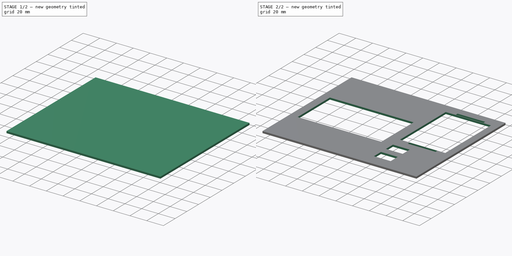
[diagram: build sequence overview — one tinted view per stage of 2, left to right]
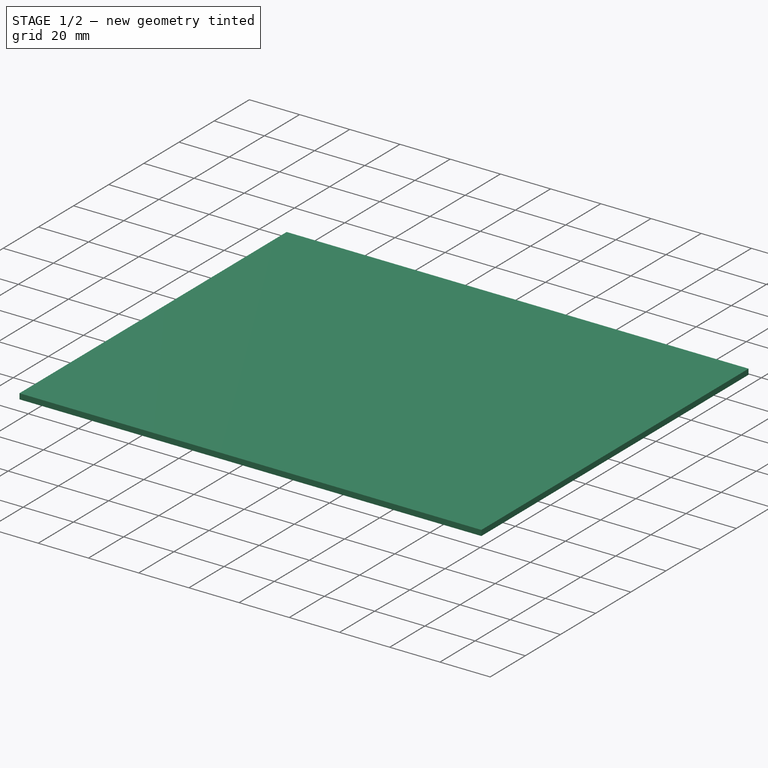
[diagram: stage 1 of 2 — iso view after this stage's code; geometry added in this stage tinted green]
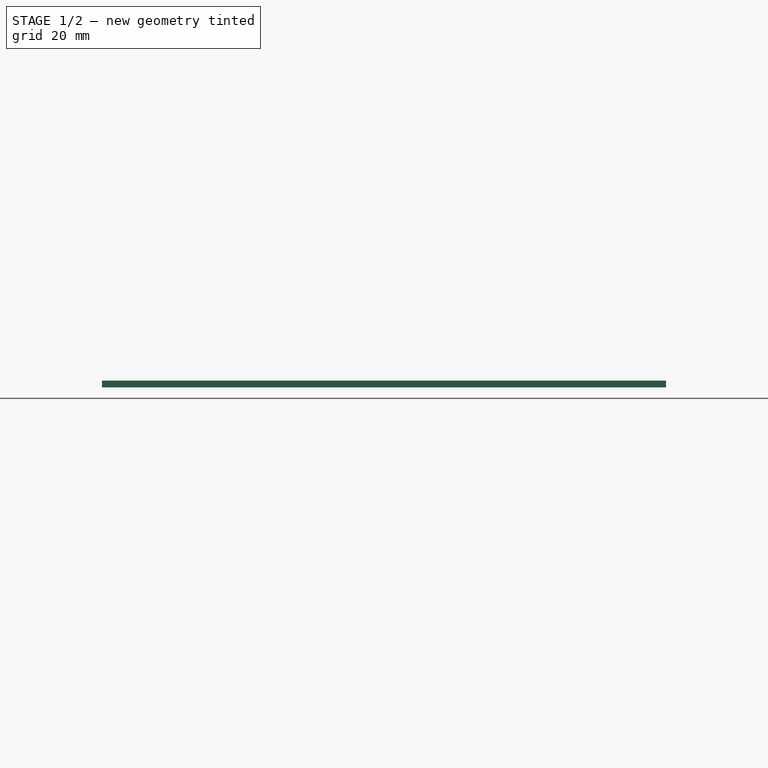
[diagram: stage 1 of 2 — front view after this stage's code; geometry added in this stage tinted green]
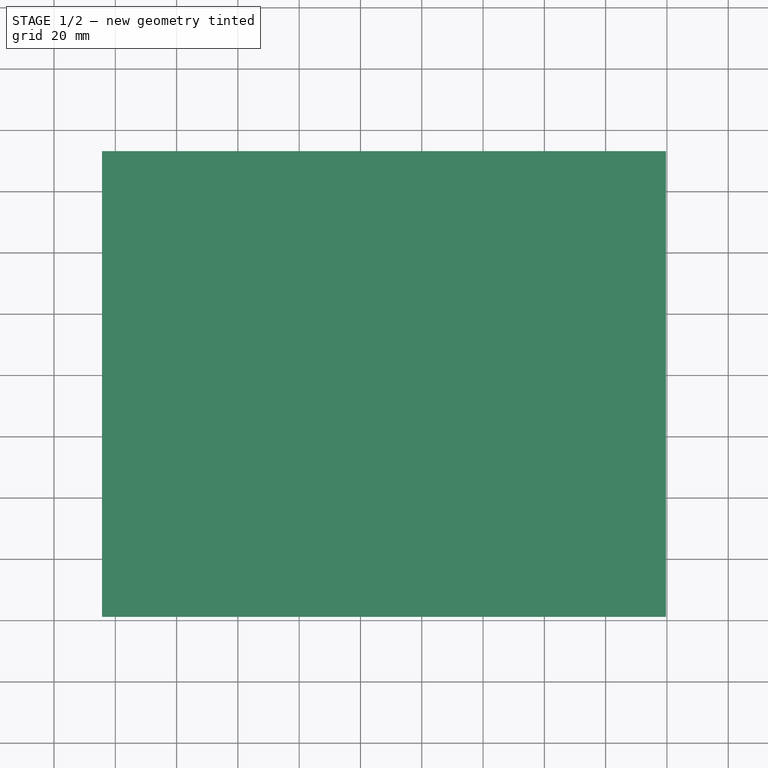
[diagram: stage 1 of 2 — top view after this stage's code; geometry added in this stage tinted green]
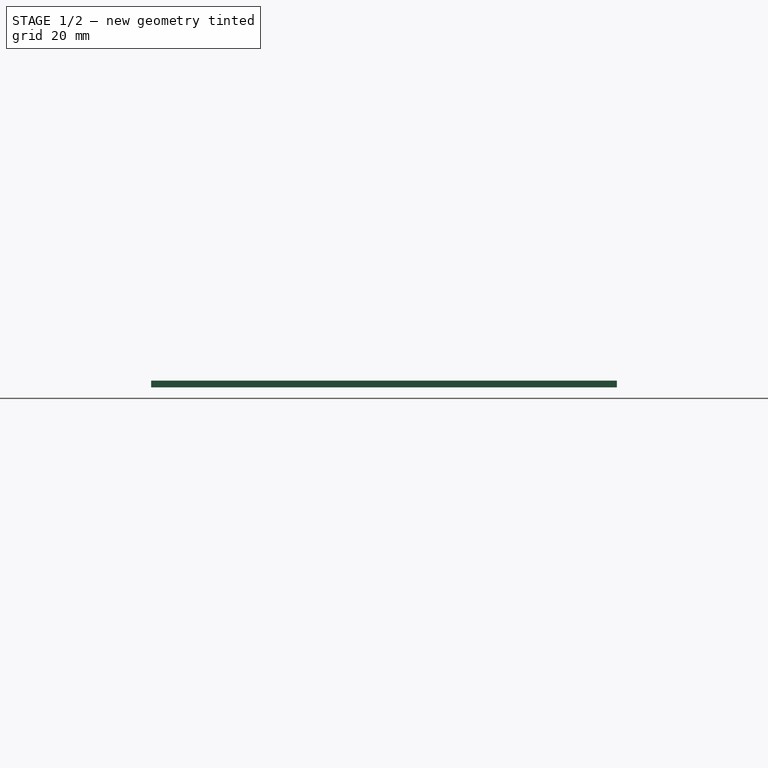
[diagram: stage 1 of 2 — right view after this stage's code; geometry added in this stage tinted green]
FCSTD DOCUMENT  (FreeCAD 0.21R33771 (Git))
Label: 3D Print Source File
License: All rights reserved
LicenseURL: https://en.wikipedia.org/wiki/All_rights_reserved
objects: Sketcher::SketchObject×2, PartDesign::Pad×1, PartDesign::Pocket×1, PartDesign::Body×1
note: 7 computed .brp shape members not serialized (recipe doc carries the construction recipe); baked Part::Feature solids carry a one-line shape summary decoded from their .brp

FEATURE [Sketcher::SketchObject] Sketch
  FullyConstrained = false
  MapMode = 5
  Support = -> [XY_Plane]
  sketch-geometry (4):
    g0: LineSegment StartX=-64.3256 StartY=53.1642 StartZ=0 EndX=119.674 EndY=53.1642 EndZ=0
    g1: LineSegment StartX=119.674 StartY=53.1642 StartZ=0 EndX=119.674 EndY=-98.8358 EndZ=0
    g2: LineSegment StartX=119.674 StartY=-98.8358 StartZ=0 EndX=-64.3256 EndY=-98.8358 EndZ=0
    g3: LineSegment StartX=-64.3256 StartY=-98.8358 StartZ=0 EndX=-64.3256 EndY=53.1642 EndZ=0
  constraints (10):
    c: Coincident(g0,g1)
    c: Coincident(g1,g2)
    c: Coincident(g2,g3)
    c: Coincident(g3,g0)
    c: Horizontal(g0)
    c: Horizontal(g2)
    c: Vertical(g1)
    c: Vertical(g3)
    c: DistanceX(g0,g0) = 184
    c: DistanceY(g3,g3) = 152
FEATURE [PartDesign::Pad] Pad
  Direction = (0,0,1)
  Length = 2.2
  Length2 = 10
  Profile = -> Sketch
  ReferenceAxis = -> Sketch [N_Axis]
  Type = 0
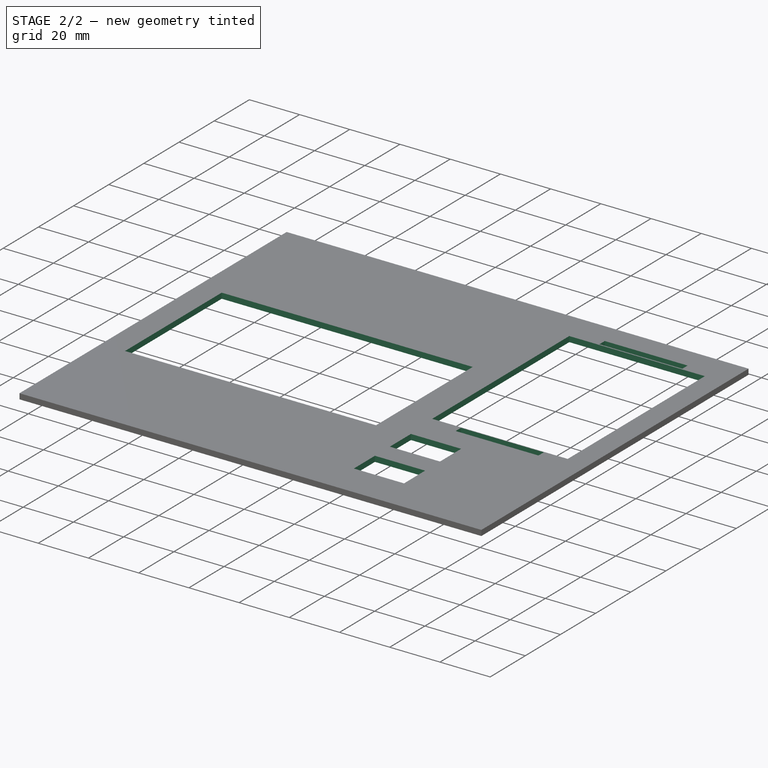
[diagram: stage 2 of 2 — iso view after this stage's code; geometry added in this stage tinted green]
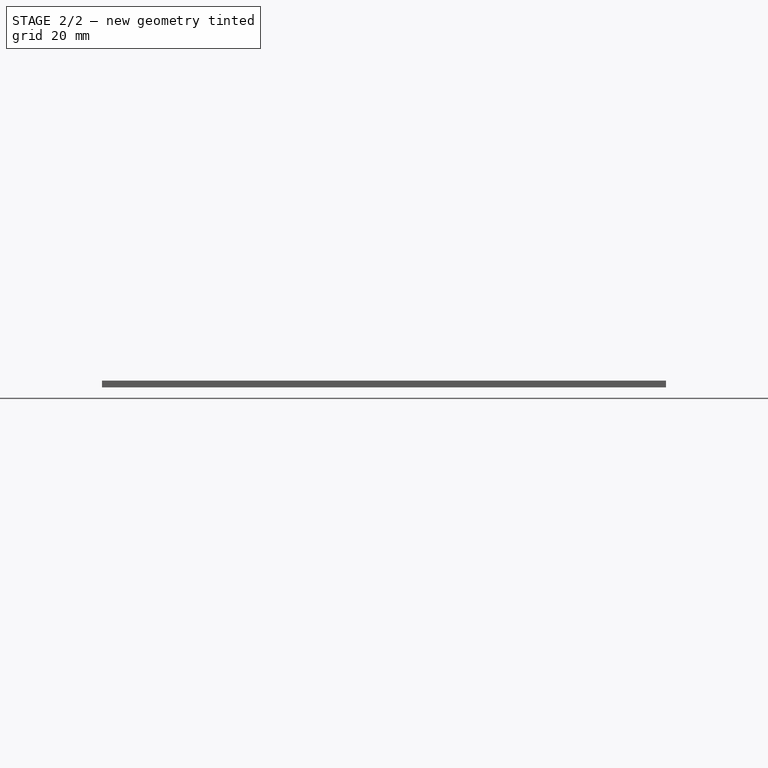
[diagram: stage 2 of 2 — front view after this stage's code; geometry added in this stage tinted green]
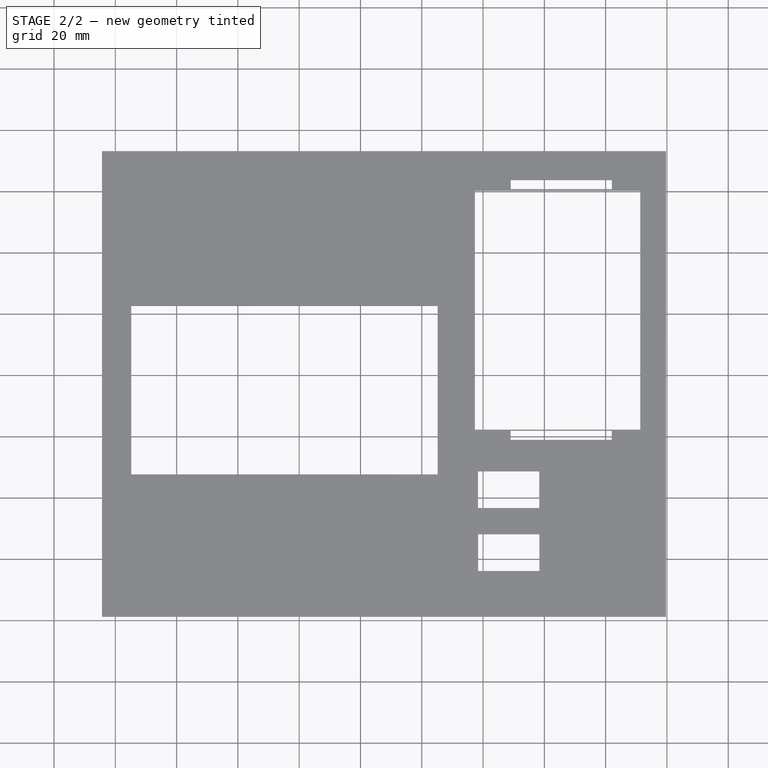
[diagram: stage 2 of 2 — top view after this stage's code; geometry added in this stage tinted green]
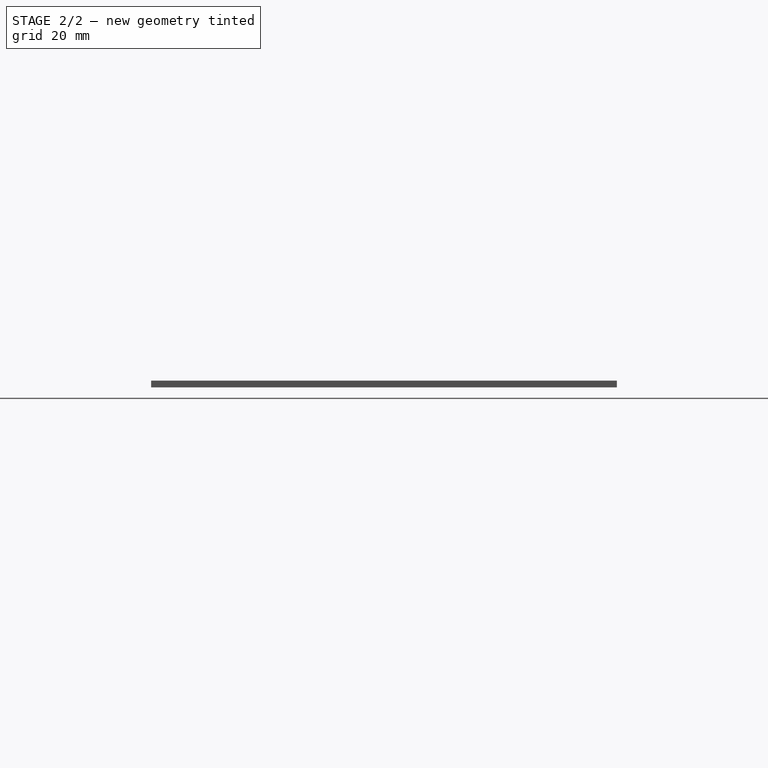
[diagram: stage 2 of 2 — right view after this stage's code; geometry added in this stage tinted green]
FEATURE [Sketcher::SketchObject] Sketch001
  FullyConstrained = false
  MapMode = 5
  Placement = pos=(0,0,2.2) rot=(0,0,1;0rad)
  Support = -> [Pad]
  sketch-geometry (24):
    g0: LineSegment StartX=57.3098 StartY=40.2418 StartZ=0 EndX=111.31 EndY=40.2418 EndZ=0
    g1: LineSegment StartX=111.31 StartY=40.2418 StartZ=0 EndX=111.31 EndY=-37.7582 EndZ=0
    g2: LineSegment StartX=111.31 StartY=-37.7582 StartZ=0 EndX=57.3098 EndY=-37.7582 EndZ=0
    g3: LineSegment StartX=57.3098 StartY=-37.7582 StartZ=0 EndX=57.3098 EndY=40.2418 EndZ=0
    g4: LineSegment StartX=-54.82 StartY=2.63515 StartZ=0 EndX=45.18 EndY=2.63515 EndZ=0
    g5: LineSegment StartX=45.18 StartY=2.63515 StartZ=0 EndX=45.18 EndY=-52.3648 EndZ=0
    g6: LineSegment StartX=45.18 StartY=-52.3648 StartZ=0 EndX=-54.82 EndY=-52.3648 EndZ=0
    g7: LineSegment StartX=-54.82 StartY=-52.3648 StartZ=0 EndX=-54.82 EndY=2.63515 EndZ=0
    g8: LineSegment StartX=58.3377 StartY=-51.3163 StartZ=0 EndX=78.3377 EndY=-51.3163 EndZ=0
    g9: LineSegment StartX=78.3377 StartY=-51.3163 StartZ=0 EndX=78.3377 EndY=-63.3163 EndZ=0
    g10: LineSegment StartX=78.3377 StartY=-63.3163 StartZ=0 EndX=58.3377 EndY=-63.3163 EndZ=0
    g11: LineSegment StartX=58.3377 StartY=-63.3163 StartZ=0 EndX=58.3377 EndY=-51.3163 EndZ=0
    g12: LineSegment StartX=58.3872 StartY=-71.8646 StartZ=0 EndX=78.3872 EndY=-71.8646 EndZ=0
    g13: LineSegment StartX=78.3872 StartY=-71.8646 StartZ=0 EndX=78.3872 EndY=-83.8646 EndZ=0
    g14: LineSegment StartX=78.3872 StartY=-83.8646 StartZ=0 EndX=58.3872 EndY=-83.8646 EndZ=0
    g15: LineSegment StartX=58.3872 StartY=-83.8646 StartZ=0 EndX=58.3872 EndY=-71.8646 EndZ=0
    g16: LineSegment StartX=69.0146 StartY=43.7391 StartZ=0 EndX=102.015 EndY=43.7391 EndZ=0
    g17: LineSegment StartX=102.015 StartY=43.7391 StartZ=0 EndX=102.015 EndY=40.7391 EndZ=0
    g18: LineSegment StartX=102.015 StartY=40.7391 StartZ=0 EndX=69.0146 EndY=40.7391 EndZ=0
    g19: LineSegment StartX=69.0146 StartY=40.7391 StartZ=0 EndX=69.0146 EndY=43.7391 EndZ=0
    g20: LineSegment StartX=68.9878 StartY=-38.0793 StartZ=0 EndX=101.988 EndY=-38.0793 EndZ=0
    g21: LineSegment StartX=101.988 StartY=-38.0793 StartZ=0 EndX=101.988 EndY=-41.0793 EndZ=0
    g22: LineSegment StartX=101.988 StartY=-41.0793 StartZ=0 EndX=68.9878 EndY=-41.0793 EndZ=0
    g23: LineSegment StartX=68.9878 StartY=-41.0793 StartZ=0 EndX=68.9878 EndY=-38.0793 EndZ=0
  constraints (60):
    c: Coincident(g0,g1)
    c: Coincident(g1,g2)
    c: Coincident(g2,g3)
    c: Coincident(g3,g0)
    c: Horizontal(g0)
    c: Horizontal(g2)
    c: Vertical(g1)
    c: Vertical(g3)
    c: DistanceX(g0,g0) = 54
    c: DistanceY(g1,g1) = 78
    c: Coincident(g4,g5)
    c: Coincident(g5,g6)
    c: Coincident(g6,g7)
    c: Coincident(g7,g4)
    c: Horizontal(g4)
    c: Horizontal(g6)
    c: Vertical(g5)
    c: Vertical(g7)
    c: DistanceX(g4,g4) = 100
    c: DistanceY(g7,g7) = 55
    c: Coincident(g8,g9)
    c: Coincident(g9,g10)
    c: Coincident(g10,g11)
    c: Coincident(g11,g8)
    c: Horizontal(g8)
    c: Horizontal(g10)
    c: Vertical(g9)
    c: Vertical(g11)
    c: DistanceY(g9,g9) = 12
    c: DistanceX(g8,g8) = 20
    c: Coincident(g12,g13)
    c: Coincident(g13,g14)
    c: Coincident(g14,g15)
    c: Coincident(g15,g12)
    c: Horizontal(g12)
    c: Horizontal(g14)
    c: Vertical(g13)
    c: Vertical(g15)
    c: DistanceY(g13,g13) = 12
    c: DistanceX(g12,g12) = 20
    c: Coincident(g16,g17)
    c: Coincident(g17,g18)
    c: Coincident(g18,g19)
    c: Coincident(g19,g16)
    c: Horizontal(g16)
    c: Horizontal(g18)
    c: Vertical(g17)
    c: Vertical(g19)
    c: DistanceX(g18,g18) = 33
    c: DistanceY(g17,g17) = 3
    c: Coincident(g20,g21)
    c: Coincident(g21,g22)
    c: Coincident(g22,g23)
    c: Coincident(g23,g20)
    c: Horizontal(g20)
    c: Horizontal(g22)
    c: Vertical(g21)
    c: Vertical(g23)
    c: DistanceX(g20,g20) = 33
    c: DistanceY(g21,g21) = 3
FEATURE [PartDesign::Pocket] Pocket
  BaseFeature = -> Pad
  Direction = (0,0,-1)
  Length = 11
  Length2 = 5
  Profile = -> Sketch001
  ReferenceAxis = -> Sketch001 [N_Axis]
  Type = 0
FEATURE [PartDesign::Body] Body
  Group = -> [Sketch,Pad,Sketch001,Pocket]
  Origin = -> Origin
  Tip = -> Pocket
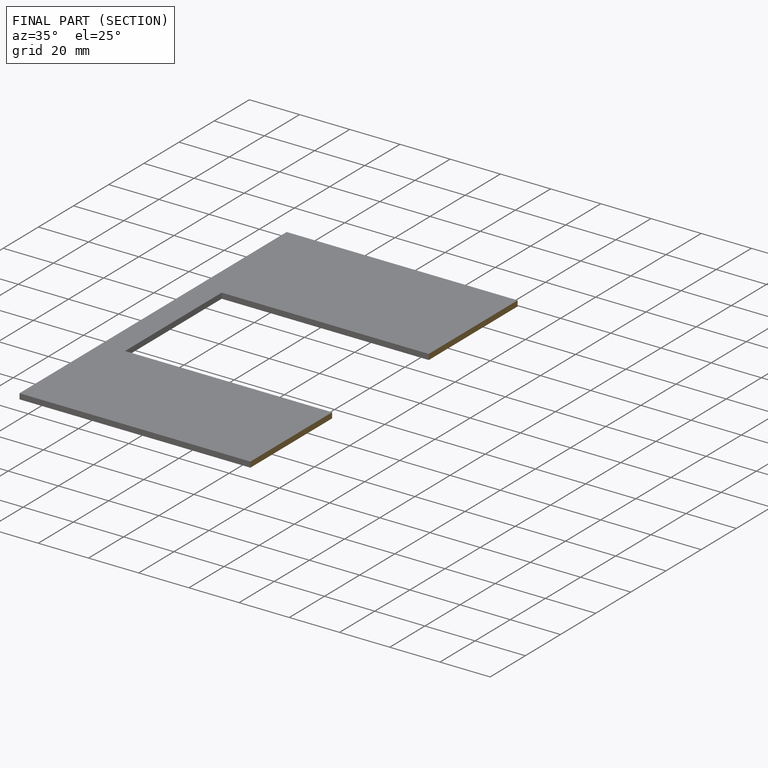
[diagram: finished part — half-section view (interior)]
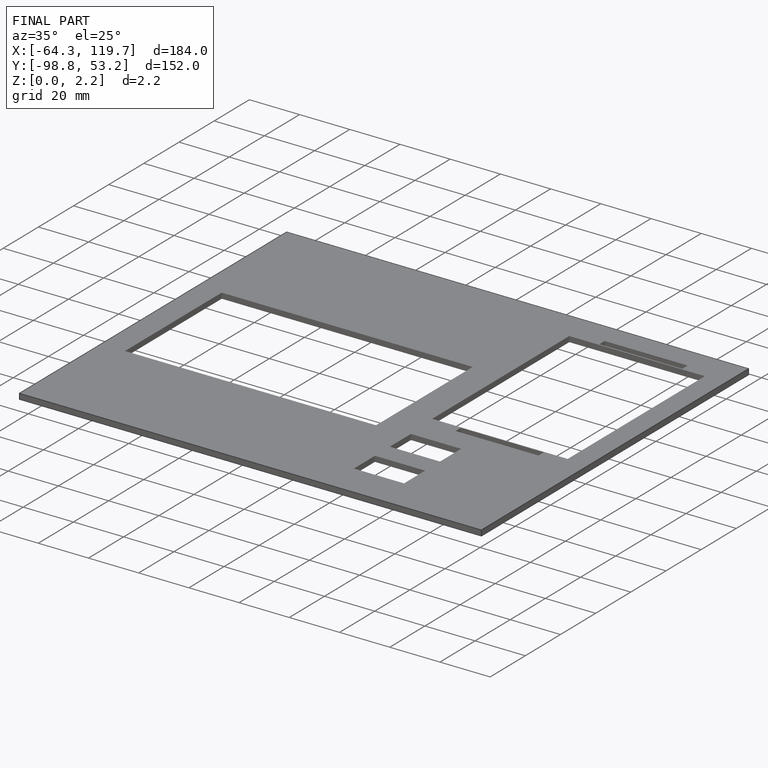
[diagram: finished part — iso view with bounding-box wireframe]
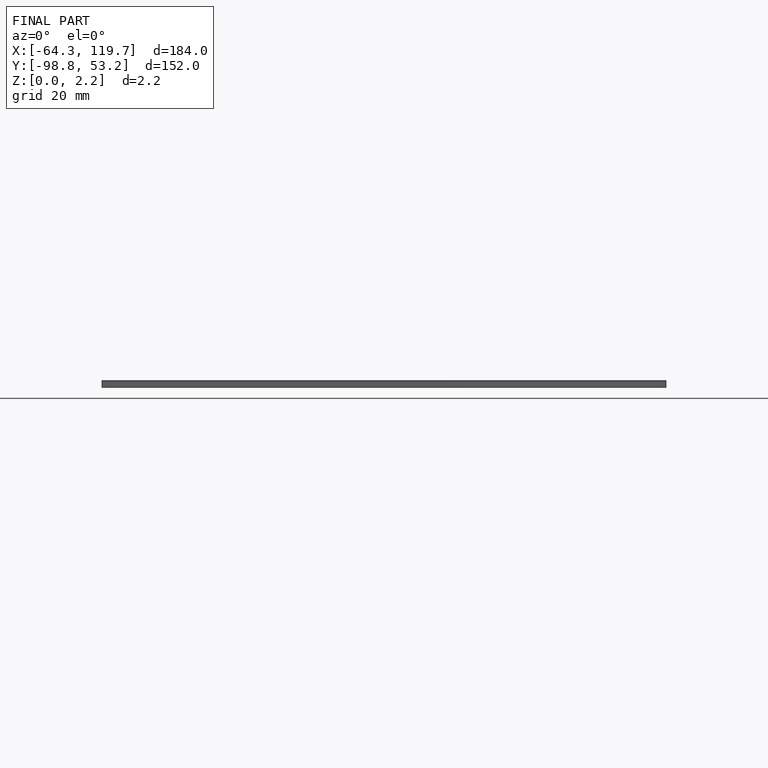
[diagram: finished part — front view with bounding-box wireframe]
